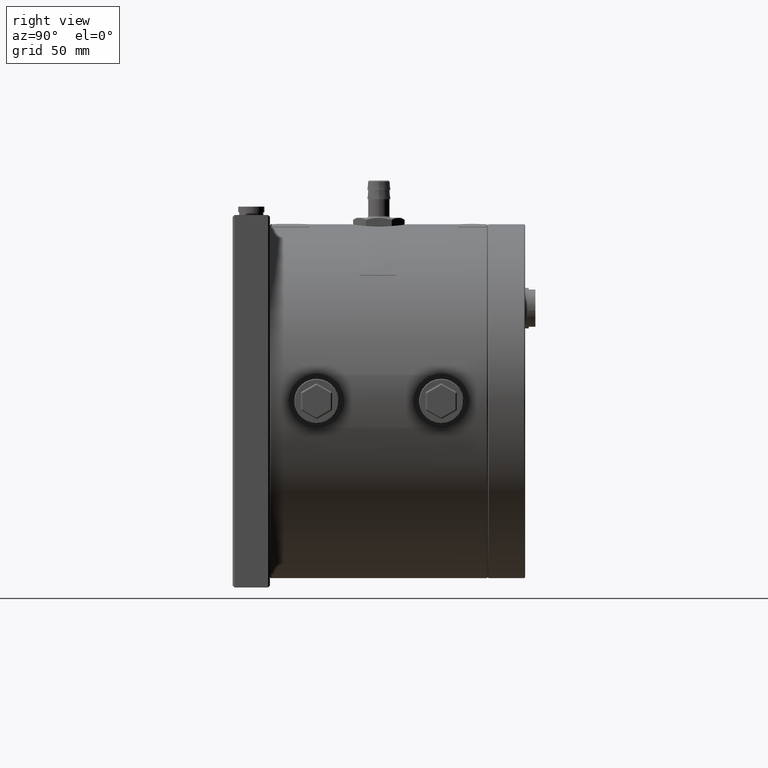
[diagram: clean part render]
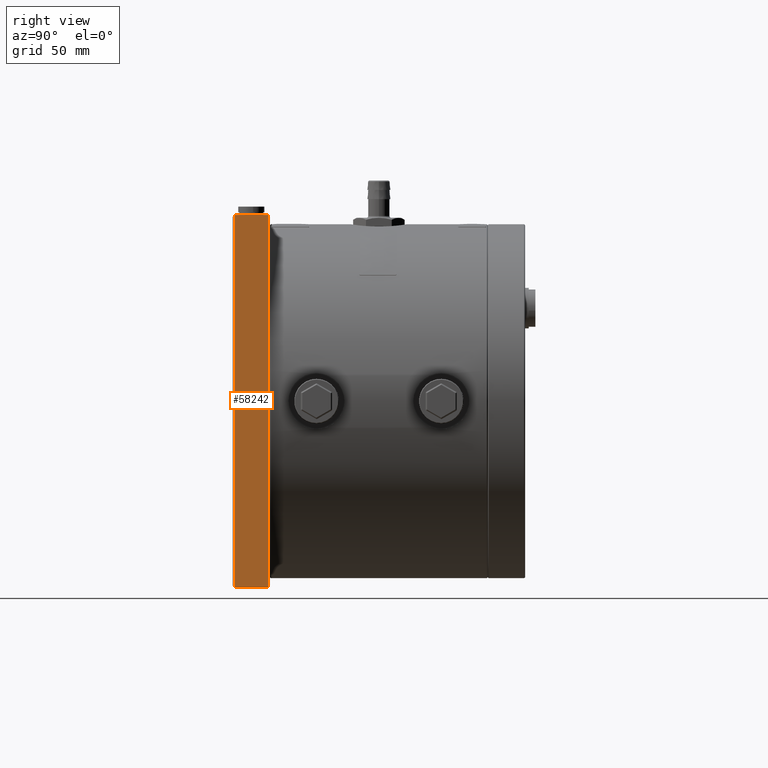
[diagram: same view with one face highlighted and labeled with its STEP entity id]
A machine part, right view. The second image highlights one B-rep face of the part: STEP entity #58242.
In plain terms, the highlighted planar face has unit normal (-1, -0, 0).
Its self-contained STEP definition (entity closure, byte-faithful):
#527 = LINE ( 'NONE', #18706, #51180 ) ;
#4642 = CARTESIAN_POINT ( 'NONE',  ( 100.0000000000000000, 1.000000000000000000, 100.0000000000000000 ) ) ;
#4768 = VERTEX_POINT ( 'NONE', #32484 ) ;
#10149 = LINE ( 'NONE', #19590, #60716 ) ;
#10500 = VECTOR ( 'NONE', #11629, 1000.000000000000000 ) ;
#11629 = DIRECTION ( 'NONE',  ( 2.300880297921579900E-017, -1.000000000000000000, 0.0000000000000000000 ) ) ;
#12405 = DIRECTION ( 'NONE',  ( -1.000000000000000000, -8.946783215029165300E-019, 1.491862189340053900E-016 ) ) ;
#18706 = CARTESIAN_POINT ( 'NONE',  ( 100.0000000000000000, 1.000000000000000000, 100.0000000000000000 ) ) ;
#19590 = CARTESIAN_POINT ( 'NONE',  ( 100.0000000000000000, 20.00000000000000000, -100.0000000000000000 ) ) ;
#19757 = VERTEX_POINT ( 'NONE', #34399 ) ;
#20179 = VECTOR ( 'NONE', #56065, 1000.000000000000000 ) ;
#20683 = EDGE_CURVE ( 'NONE', #19757, #63420, #20919, .T. ) ;
#20919 = LINE ( 'NONE', #26495, #20179 ) ;
#21204 = DIRECTION ( 'NONE',  ( 1.491862189340053900E-016, -6.234162491791649300E-017, 1.000000000000000000 ) ) ;
#25441 = VERTEX_POINT ( 'NONE', #4642 ) ;
#26495 = CARTESIAN_POINT ( 'NONE',  ( 100.0000000000000000, 19.00000000000000000, 100.0000000000000000 ) ) ;
#30395 = LINE ( 'NONE', #55092, #10500 ) ;
#32201 = CARTESIAN_POINT ( 'NONE',  ( 100.0000000000000000, 19.00000000000000000, 100.0000000000000000 ) ) ;
#32484 = CARTESIAN_POINT ( 'NONE',  ( 100.0000000000000000, 1.000000000000000000, -100.0000000000000000 ) ) ;
#32629 = ORIENTED_EDGE ( 'NONE', *, *, #41625, .F. ) ;
#34399 = CARTESIAN_POINT ( 'NONE',  ( 100.0000000000000000, 19.00000000000000000, -100.0000000000000000 ) ) ;
#36293 = EDGE_CURVE ( 'NONE', #63420, #25441, #30395, .T. ) ;
#41625 = EDGE_CURVE ( 'NONE', #19757, #4768, #10149, .T. ) ;
#41644 = ORIENTED_EDGE ( 'NONE', *, *, #52982, .T. ) ;
#41769 = PLANE ( 'NONE',  #44384 ) ;
#44384 = AXIS2_PLACEMENT_3D ( 'NONE', #45819, #12405, #21204 ) ;
#45819 = CARTESIAN_POINT ( 'NONE',  ( 100.0000000000000000, 20.00000000000000000, 100.0000000000000000 ) ) ;
#50014 = ORIENTED_EDGE ( 'NONE', *, *, #20683, .T. ) ;
#50849 = FACE_OUTER_BOUND ( 'NONE', #57974, .T. ) ;
#51180 = VECTOR ( 'NONE', #62199, 1000.000000000000000 ) ;
#52982 = EDGE_CURVE ( 'NONE', #25441, #4768, #527, .T. ) ;
#55092 = CARTESIAN_POINT ( 'NONE',  ( 100.0000000000000000, 20.00000000000000000, 100.0000000000000000 ) ) ;
#56065 = DIRECTION ( 'NONE',  ( 1.491862189340053900E-016, -6.234162491791649300E-017, 1.000000000000000000 ) ) ;
#57909 = DIRECTION ( 'NONE',  ( 2.300880297921579900E-017, -1.000000000000000000, 0.0000000000000000000 ) ) ;
#57974 = EDGE_LOOP ( 'NONE', ( #63636, #41644, #32629, #50014 ) ) ;
#58242 = ADVANCED_FACE ( 'NONE', ( #50849 ), #41769, .F. ) ;
#60716 = VECTOR ( 'NONE', #57909, 1000.000000000000000 ) ;
#62199 = DIRECTION ( 'NONE',  ( -1.491862189340053900E-016, 6.234162491791649300E-017, -1.000000000000000000 ) ) ;
#63420 = VERTEX_POINT ( 'NONE', #32201 ) ;
#63636 = ORIENTED_EDGE ( 'NONE', *, *, #36293, .T. ) ;